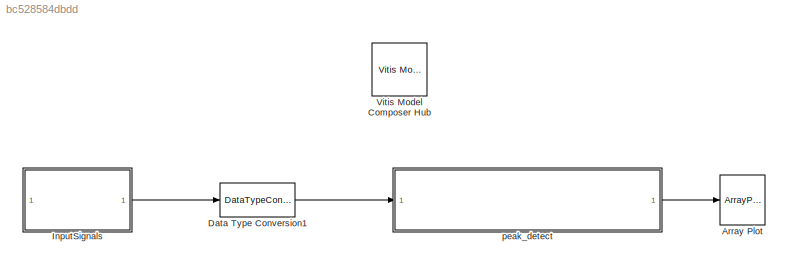
MODEL slx_bc528584dbdd
KIND model
CONFIG AbsTol = auto
CONFIG EnableMultiTasking = off
CONFIG FixedStep = auto
CONFIG MaxStep = auto
CONFIG MinStep = auto
CONFIG PostLoadFcn = detect_test_init
CONFIG RelTol = 1e-3
CONFIG SampleTimeConstraint = Unconstrained
CONFIG SolverName = VariableStepAuto
CONFIG StartTime = 0.0
CONFIG StopTime = .0025
BLOCK [ArrayPlot] Array Plot
  GraphicalSettings = {"Style":{"BackgroundColor":[0.15686274509803921,0.15686274509803921,0.15686274509803921],"AxesColor":[0,0,0],"LabelsColor":[0.68627450980392157,0.68627450980392157,0.68627450980392157],"LineStyle":["-"],"LineColor":[1,1,0.066666666666666666],"LineWidth":1.5,"Marker":["o"],"FontSize":"small"}}
  Visible = on
  WasSavedAsWebScope = on
  WindowPosition = [1625.000000,180.000000,891.000000,563.000000,]
  YLimits = [-37.375,336.375]
BLOCK [DataTypeConversion] Data Type Conversion1
  OutDataTypeStr = int16
  RndMeth = Floor
  SaturateOnIntegerOverflow = off
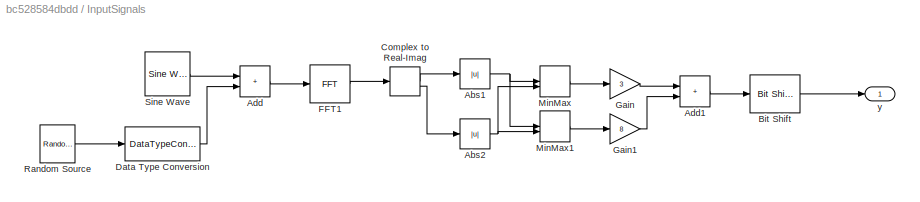
BLOCK [SubSystem] InputSignals
BLOCK [Abs] InputSignals/Abs1
  SaturateOnIntegerOverflow = off
BLOCK [Abs] InputSignals/Abs2
  SaturateOnIntegerOverflow = off
BLOCK [Sum] InputSignals/Add
  IconShape = rectangular
BLOCK [Sum] InputSignals/Add1
  AccumDataTypeStr = fixdt(1,16,0)
  IconShape = rectangular
BLOCK [Reference] InputSignals/Bit Shift  REF=hdlsllib/Logic and Bit
Operations/Bit Shift
  SourceBlock = hdlsllib/Logic and Bit\nOperations/Bit Shift
  SourceType = Bit Shift
BLOCK [ComplexToRealImag] InputSignals/Complex to Real-Imag
BLOCK [DataTypeConversion] InputSignals/Data Type Conversion
  OutDataTypeStr = fixdt(1,16,0)
  RndMeth = Floor
  SaturateOnIntegerOverflow = off
BLOCK [Reference] InputSignals/FFT1  REF=dspxfrm3/FFT
  SourceBlock = dspxfrm3/FFT
  SourceType = FFT
BLOCK [Gain] InputSignals/Gain
  Gain = 3
  ParamDataTypeStr = fixdt(1,16,0)
BLOCK [Gain] InputSignals/Gain1
  Gain = 8
  OutDataTypeStr = int16
BLOCK [MinMax] InputSignals/MinMax
  Inputs = 2
BLOCK [MinMax] InputSignals/MinMax1
  Function = max
  Inputs = 2
BLOCK [Reference] InputSignals/Random Source  REF=dspobslib/Random
Source
  SourceBlock = dspobslib/Random\nSource
  SourceType = Random Source Obsolete
  UserDataPersistent = on
BLOCK [Reference] InputSignals/Sine Wave  REF=dspsrcs4/Sine Wave
  SourceBlock = dspsrcs4/Sine Wave
  SourceType = Sine Wave
BLOCK [Outport] InputSignals/y
BLOCK [Reference] Vitis Model Composer Hub  REF=vmcUtilities/Vitis Model Composer Hub
  SourceBlock = vmcUtilities/Vitis Model Composer Hub
  SourceType = VMC Hub
  Tag = genX
  UserDataPersistent = on
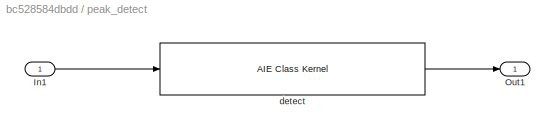
BLOCK [SubSystem] peak_detect
BLOCK [Inport] peak_detect/In1
BLOCK [Outport] peak_detect/Out1
BLOCK [Reference] peak_detect/detect  REF=aieBasic/AIE Class Kernel
  SourceBlock = aieBasic/AIE Class Kernel
  SourceType = AIE Class Kernel Function
LINE Data Type Conversion1:1 -> peak_detect:1
NET InputSignals/Abs1:1 -> InputSignals/MinMax1:1, InputSignals/MinMax:1
NET InputSignals/Abs2:1 -> InputSignals/MinMax1:2, InputSignals/MinMax:2
LINE InputSignals/Add1:1 -> InputSignals/Bit Shift:1
LINE InputSignals/Add:1 -> InputSignals/FFT1:1
LINE InputSignals/Bit Shift:1 -> InputSignals/y:1
LINE InputSignals/Complex to Real-Imag:1 -> InputSignals/Abs1:1
LINE InputSignals/Complex to Real-Imag:2 -> InputSignals/Abs2:1
LINE InputSignals/Data Type Conversion:1 -> InputSignals/Add:2
LINE InputSignals/FFT1:1 -> InputSignals/Complex to Real-Imag:1
LINE InputSignals/Gain1:1 -> InputSignals/Add1:2
LINE InputSignals/Gain:1 -> InputSignals/Add1:1
LINE InputSignals/MinMax1:1 -> InputSignals/Gain1:1
LINE InputSignals/MinMax:1 -> InputSignals/Gain:1
LINE InputSignals/Random Source:1 -> InputSignals/Data Type Conversion:1
LINE InputSignals/Sine Wave:1 -> InputSignals/Add:1
LINE InputSignals:1 -> Data Type Conversion1:1
LINE peak_detect/In1:1 -> peak_detect/detect:1
LINE peak_detect/detect:1 -> peak_detect/Out1:1
LINE peak_detect:1 -> Array Plot:1
note: NET lines group one-source signal fan-out (src -> all destinations, sorted); 1:1 wires keep LINE
